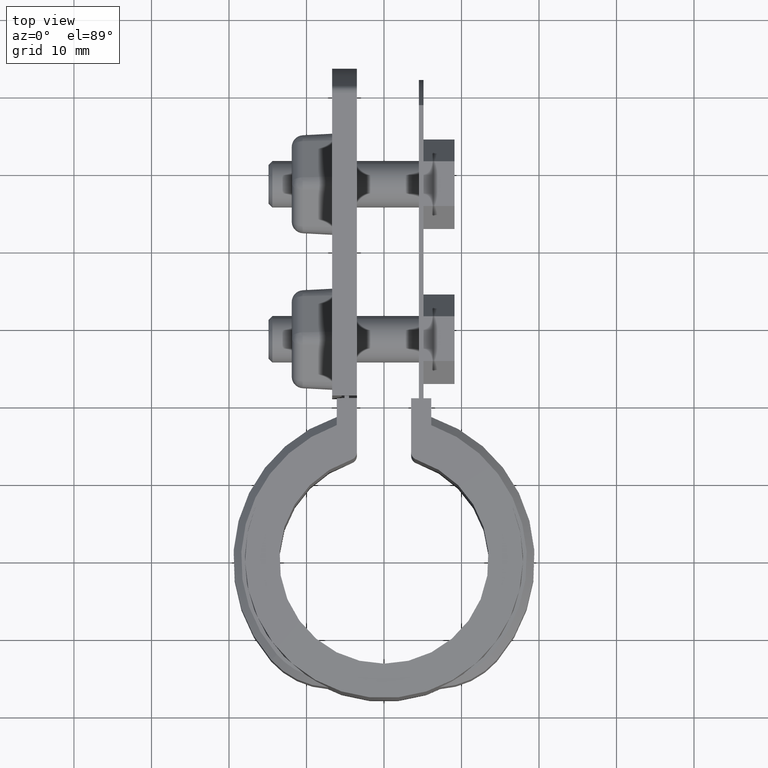
[diagram: clean part render]
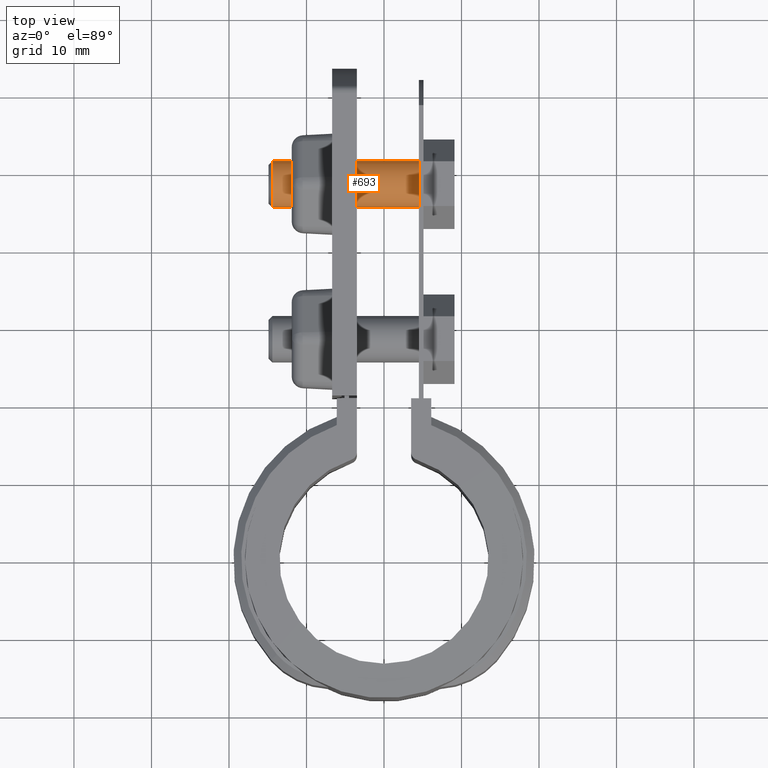
[diagram: same view with one face highlighted and labeled with its STEP entity id]
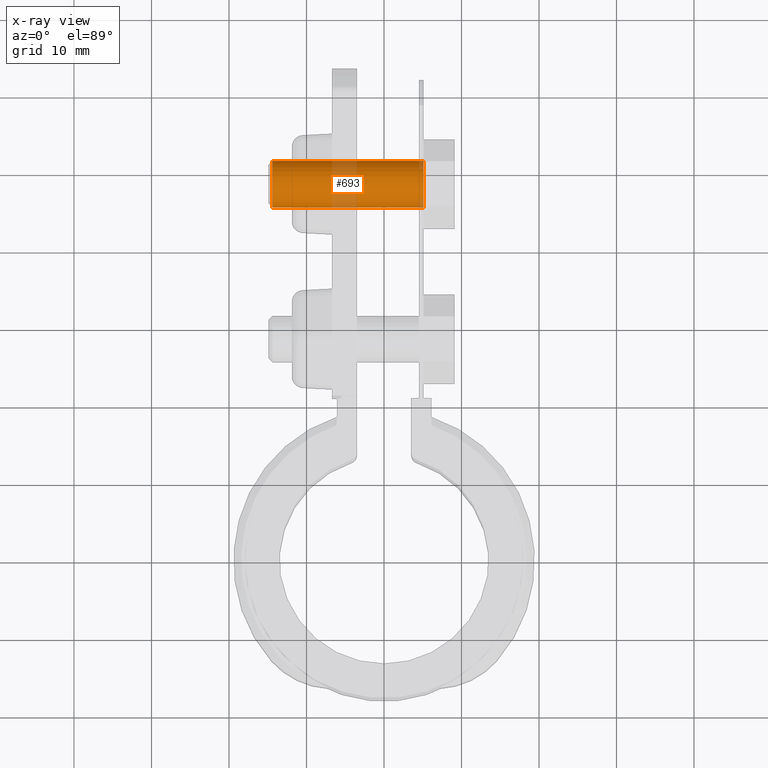
[diagram: x-ray of the same camera — body ghosted, the highlighted face saturated]
A machine part, top view. The second image highlights one B-rep face of the part: STEP entity #693.
The next image is the same camera in x-ray: the body ghosted, the highlighted face saturated — about 18% of this face is hidden behind the body in this view.
In plain terms, the highlighted cylindrical surface (bore or boss wall) has radius 3 mm, axis along (1, -0, -0).
Its self-contained STEP definition (entity closure, byte-faithful):
#693 = ADVANCED_FACE( '', ( #1412, #1413 ), #1414, .T. );
#1412 = FACE_OUTER_BOUND( '', #2788, .T. );
#1413 = FACE_OUTER_BOUND( '', #2789, .T. );
#1414 = CYLINDRICAL_SURFACE( '', #2790, 2.99999999999998 );
#2788 = EDGE_LOOP( '', ( #6149 ) );
#2789 = EDGE_LOOP( '', ( #6150 ) );
#2790 = AXIS2_PLACEMENT_3D( '', #6151, #6152, #6153 );
#6149 = ORIENTED_EDGE( '', *, *, #7101, .T. );
#6150 = ORIENTED_EDGE( '', *, *, #7095, .F. );
#6151 = CARTESIAN_POINT( '', ( 13.5487843911358, 48.6042845476280, -12.4999999999998 ) );
#6152 = DIRECTION( '', ( 1.00000000000000, -9.04172709874367E-054, -5.22024357439877E-054 ) );
#6153 = DIRECTION( '', ( 1.04404871487976E-053, 0.866025403784439, 0.500000000000000 ) );
#7095 = EDGE_CURVE( '', #8598, #8598, #8599, .F. );
#7101 = EDGE_CURVE( '', #8608, #8608, #8609, .T. );
#8598 = VERTEX_POINT( '', #12136 );
#8599 = CIRCLE( '', #12137, 2.99999999999998 );
#8608 = VERTEX_POINT( '', #12151 );
#8609 = CIRCLE( '', #12152, 2.99999999999998 );
#12136 = CARTESIAN_POINT( '', ( 5.09999999999993, 51.2023607589813, -10.9999999999998 ) );
#12137 = AXIS2_PLACEMENT_3D( '', #13381, #13382, #13383 );
#12151 = CARTESIAN_POINT( '', ( -14.4000000000001, 46.0062083362747, -13.9999999999998 ) );
#12152 = AXIS2_PLACEMENT_3D( '', #13389, #13390, #13391 );
#13381 = CARTESIAN_POINT( '', ( 5.09999999999993, 48.6042845476280, -12.4999999999998 ) );
#13382 = DIRECTION( '', ( -1.00000000000000, 9.04172709874367E-054, 5.22024357439877E-054 ) );
#13383 = DIRECTION( '', ( 1.04404871487976E-053, 0.866025403784439, 0.500000000000000 ) );
#13389 = CARTESIAN_POINT( '', ( -14.4000000000001, 48.6042845476280, -12.4999999999998 ) );
#13390 = DIRECTION( '', ( 1.00000000000000, -9.04172709874367E-054, -5.22024357439877E-054 ) );
#13391 = DIRECTION( '', ( -1.04404871487976E-053, -0.866025403784439, -0.500000000000000 ) );